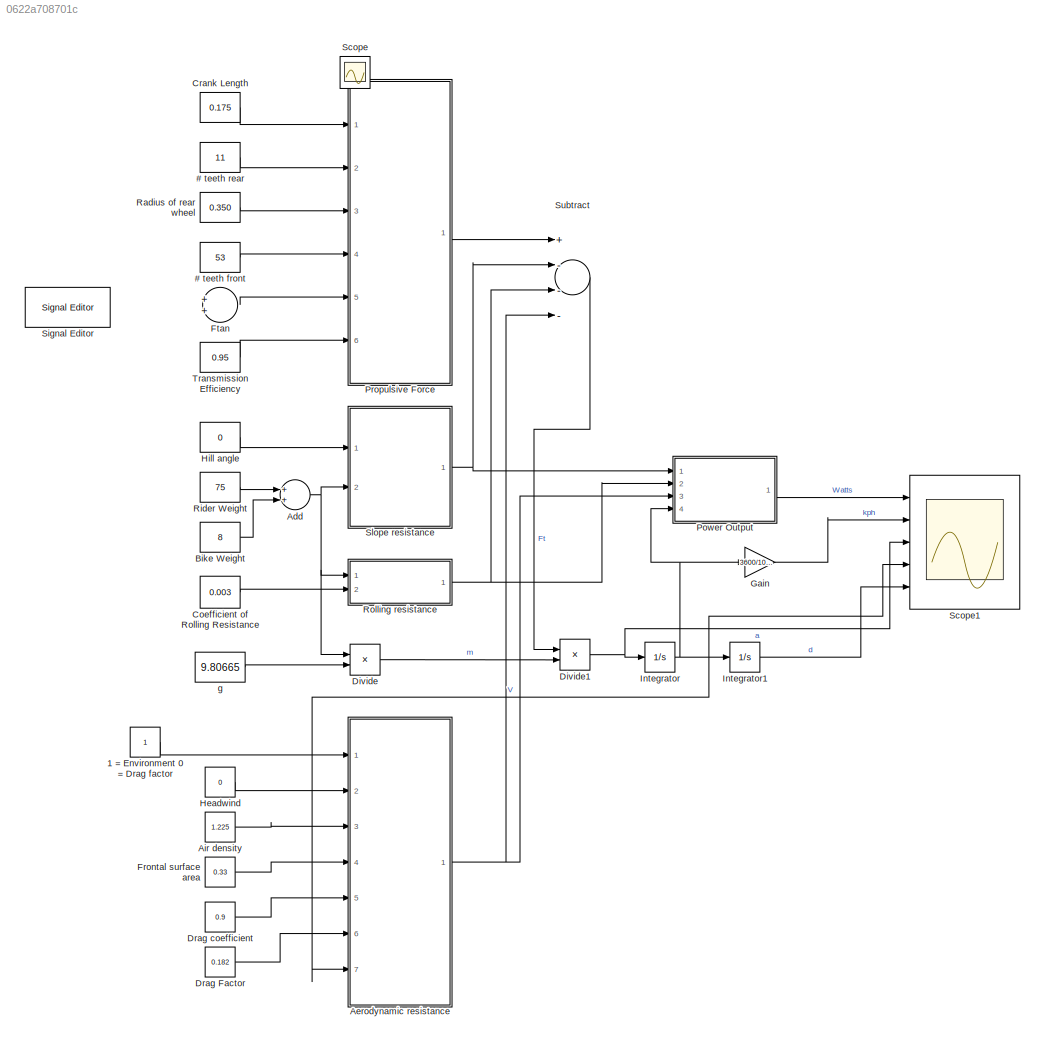
MODEL slx_0622a708701c
KIND model
CONFIG AbsTol = auto
CONFIG EnableMultiTasking = off
CONFIG FixedStep = auto
CONFIG MaxStep = auto
CONFIG MinStep = auto
CONFIG RelTol = 1e-3
CONFIG SampleTimeConstraint = Unconstrained
CONFIG Solver = VariableStepAuto
CONFIG SolverName = VariableStepAuto
CONFIG StartTime = 0.0
CONFIG StopTime = 15.84
BLOCK [Constant]  Drag coefficient
  Value = 0.9
BLOCK [Constant] # teeth front
  Value = 53
BLOCK [Constant] # teeth rear
  Value = 11
BLOCK [Constant] 1 = Environment 0 = Drag factor
BLOCK [Sum] Add
  InputSameDT = off
  OutDataTypeStr = Inherit: Inherit via internal rule
  Ports = [2, 1]
  SaturateOnIntegerOverflow = off
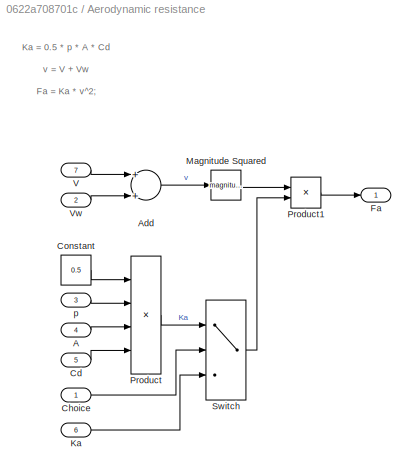
BLOCK [SubSystem] Aerodynamic resistance
  Ports = [7, 1]
  RequestExecContextInheritance = off
BLOCK [Inport] Aerodynamic resistance/A
  IconDisplay = Port number
  Port = 4
BLOCK [Sum] Aerodynamic resistance/Add
  InputSameDT = off
  OutDataTypeStr = Inherit: Inherit via internal rule
  Ports = [2, 1]
  SaturateOnIntegerOverflow = off
BLOCK [Inport] Aerodynamic resistance/Cd
  IconDisplay = Port number
  Port = 5
BLOCK [Inport] Aerodynamic resistance/Choice
  IconDisplay = Port number
BLOCK [Constant] Aerodynamic resistance/Constant
  Value = 0.5
BLOCK [Outport] Aerodynamic resistance/Fa
  IconDisplay = Port number
BLOCK [Inport] Aerodynamic resistance/Ka
  IconDisplay = Port number
  Port = 6
BLOCK [Math] Aerodynamic resistance/Magnitude Squared
  Operator = magnitude^2
  Ports = [1, 1]
  SignedPower = off
BLOCK [Product] Aerodynamic resistance/Product
  InputSameDT = off
  Inputs = 4
  OutDataTypeStr = Inherit: Inherit via internal rule
  Ports = [4, 1]
  RndMeth = Floor
  SaturateOnIntegerOverflow = off
BLOCK [Product] Aerodynamic resistance/Product1
  InputSameDT = off
  OutDataTypeStr = Inherit: Inherit via internal rule
  Ports = [2, 1]
  RndMeth = Floor
  SaturateOnIntegerOverflow = off
BLOCK [Switch] Aerodynamic resistance/Switch
  Criteria = u2 > Threshold
  InputSameDT = off
  SaturateOnIntegerOverflow = off
BLOCK [Inport] Aerodynamic resistance/V
  IconDisplay = Port number
  Port = 7
BLOCK [Inport] Aerodynamic resistance/Vw
  IconDisplay = Port number
  Port = 2
BLOCK [Inport] Aerodynamic resistance/p
  IconDisplay = Port number
  Port = 3
BLOCK [Constant] Air density
  Value = 1.225
BLOCK [Constant] Bike Weight 
  Value = 8
BLOCK [Constant] Coefficient of Rolling Resistance
  Value = 0.003
BLOCK [Constant] Crank Length
  Value = 0.175
BLOCK [Product] Divide
  InputSameDT = off
  Inputs = */
  OutDataTypeStr = Inherit: Inherit via internal rule
  Ports = [2, 1]
  RndMeth = Floor
  SaturateOnIntegerOverflow = off
BLOCK [Product] Divide1
  InputSameDT = off
  Inputs = */
  OutDataTypeStr = Inherit: Inherit via internal rule
  Ports = [2, 1]
  RndMeth = Floor
  SaturateOnIntegerOverflow = off
BLOCK [Constant] Drag Factor
  Value = 0.182
BLOCK [Constant] Frontal surface area
  Value = 0.33
BLOCK [Sum] Ftan
  InputSameDT = off
  OutDataTypeStr = Inherit: Inherit via internal rule
  Ports = [2, 1]
  SaturateOnIntegerOverflow = off
BLOCK [Gain] Gain
  Gain = 3600/1000
  OutDataTypeStr = Inherit: Inherit via internal rule
  ParamDataTypeStr = Inherit: Inherit via internal rule
  SaturateOnIntegerOverflow = off
BLOCK [Constant] Headwind
  Value = 0
BLOCK [Constant] Hill angle 
  Value = 0
BLOCK [Integrator] Integrator
  Ports = [1, 1]
BLOCK [Integrator] Integrator1
  Ports = [1, 1]
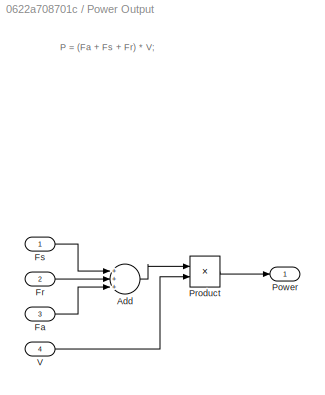
BLOCK [SubSystem] Power Output
  Ports = [4, 1]
  RequestExecContextInheritance = off
BLOCK [Sum] Power Output/Add
  InputSameDT = off
  Inputs = +++
  OutDataTypeStr = Inherit: Inherit via internal rule
  Ports = [3, 1]
  SaturateOnIntegerOverflow = off
BLOCK [Inport] Power Output/Fa
  IconDisplay = Port number
  Port = 3
BLOCK [Inport] Power Output/Fr
  IconDisplay = Port number
  Port = 2
BLOCK [Inport] Power Output/Fs
  IconDisplay = Port number
BLOCK [Outport] Power Output/Power
  IconDisplay = Port number
BLOCK [Product] Power Output/Product
  InputSameDT = off
  OutDataTypeStr = Inherit: Inherit via internal rule
  Ports = [2, 1]
  RndMeth = Floor
  SaturateOnIntegerOverflow = off
BLOCK [Inport] Power Output/V
  IconDisplay = Port number
  Port = 4
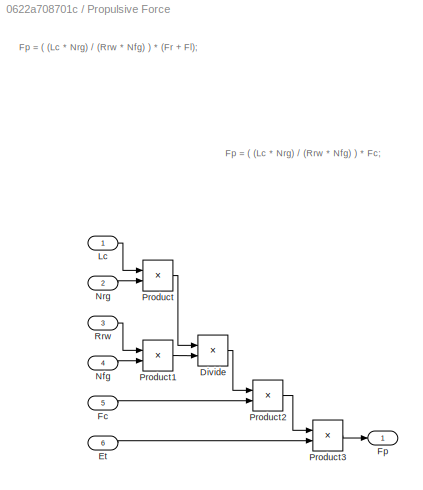
BLOCK [SubSystem] Propulsive Force
  Ports = [6, 1]
  RequestExecContextInheritance = off
BLOCK [Product] Propulsive Force/Divide
  InputSameDT = off
  Inputs = */
  OutDataTypeStr = Inherit: Inherit via internal rule
  Ports = [2, 1]
  RndMeth = Floor
  SaturateOnIntegerOverflow = off
BLOCK [Inport] Propulsive Force/Et
  IconDisplay = Port number
  Port = 6
BLOCK [Inport] Propulsive Force/Fc 
  IconDisplay = Port number
  Port = 5
BLOCK [Outport] Propulsive Force/Fp 
  IconDisplay = Port number
BLOCK [Inport] Propulsive Force/Lc 
  IconDisplay = Port number
BLOCK [Inport] Propulsive Force/Nfg 
  IconDisplay = Port number
  Port = 4
BLOCK [Inport] Propulsive Force/Nrg 
  IconDisplay = Port number
  Port = 2
BLOCK [Product] Propulsive Force/Product
  InputSameDT = off
  OutDataTypeStr = Inherit: Inherit via internal rule
  Ports = [2, 1]
  RndMeth = Floor
  SaturateOnIntegerOverflow = off
BLOCK [Product] Propulsive Force/Product1
  InputSameDT = off
  OutDataTypeStr = Inherit: Inherit via internal rule
  Ports = [2, 1]
  RndMeth = Floor
  SaturateOnIntegerOverflow = off
BLOCK [Product] Propulsive Force/Product2
  InputSameDT = off
  OutDataTypeStr = Inherit: Inherit via internal rule
  Ports = [2, 1]
  RndMeth = Floor
  SaturateOnIntegerOverflow = off
BLOCK [Product] Propulsive Force/Product3
  InputSameDT = off
  OutDataTypeStr = Inherit: Inherit via internal rule
  Ports = [2, 1]
  RndMeth = Floor
  SaturateOnIntegerOverflow = off
BLOCK [Inport] Propulsive Force/Rrw 
  IconDisplay = Port number
  Port = 3
BLOCK [Constant] Radius of rear wheel
  Value = 0.350
BLOCK [Constant] Rider Weight 
  Value = 75
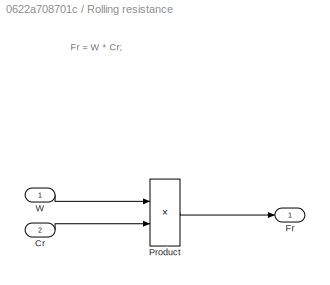
BLOCK [SubSystem] Rolling resistance
  Ports = [2, 1]
  RequestExecContextInheritance = off
BLOCK [Inport] Rolling resistance/Cr 
  IconDisplay = Port number
  Port = 2
BLOCK [Outport] Rolling resistance/Fr 
  IconDisplay = Port number
BLOCK [Product] Rolling resistance/Product
  InputSameDT = off
  OutDataTypeStr = Inherit: Inherit via internal rule
  Ports = [2, 1]
  RndMeth = Floor
  SaturateOnIntegerOverflow = off
BLOCK [Inport] Rolling resistance/W 
  IconDisplay = Port number
BLOCK [Scope] Scope
  Floating = off
  IOType = viewer
  NumInputPorts = 1
  Ports = []
  ScopeSpecificationString = Simulink.scopes.TimeScopeBlockCfg('CurrentConfiguration', extmgr.ConfigurationSet(extmgr.Configuration('Core','General UI',true),extmgr.Configuration('Core','Source UI',true),extmgr.Configuration('Sources','WiredSimulink',true),extmgr.Configuration('Visuals','Time Domain',true,'SerializedDisplays',{struct('MinYLimReal','-266.01563','MaxYLimReal','1310.78198','YLabelReal','','MinYLimMag',' 0.00000'...<+1373ch>
BLOCK [Scope] Scope1
  Floating = off
  NumInputPorts = 5
  Ports = [5]
  ScopeSpecificationString = Simulink.scopes.TimeScopeBlockCfg('CurrentConfiguration', extmgr.ConfigurationSet(extmgr.Configuration('Core','General UI',true),extmgr.Configuration('Core','Source UI',true),extmgr.Configuration('Sources','WiredSimulink',true,'DataLoggingVariableName','data_out','DataLogging',true),extmgr.Configuration('Visuals','Time Domain',true,'SerializedDisplays',{struct('MinYLimReal','-1041.28375','MaxYLimR...<+2158ch>
BLOCK [Reference] Signal Editor  REF=SignalEditorBlockLib/Signal Editor
  Ports = [0, 1]
  SourceBlock = SignalEditorBlockLib/Signal Editor
  SourceProductBaseCode = SL
  SourceProductName = Simulink
  SourceType = SignalEditor
  UserDataPersistent = on
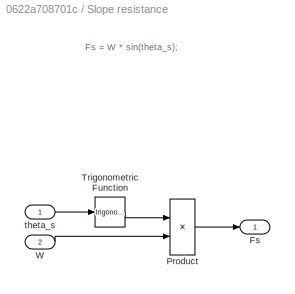
BLOCK [SubSystem] Slope resistance
  Ports = [2, 1]
  RequestExecContextInheritance = off
BLOCK [Outport] Slope resistance/Fs
  IconDisplay = Port number
BLOCK [Product] Slope resistance/Product
  InputSameDT = off
  OutDataTypeStr = Inherit: Inherit via internal rule
  Ports = [2, 1]
  RndMeth = Floor
  SaturateOnIntegerOverflow = off
BLOCK [Trigonometry] Slope resistance/Trigonometric Function
  Ports = [1, 1]
BLOCK [Inport] Slope resistance/W 
  IconDisplay = Port number
  Port = 2
BLOCK [Inport] Slope resistance/theta_s
  IconDisplay = Port number
BLOCK [Sum] Subtract
  InputSameDT = off
  Inputs = +---
  OutDataTypeStr = Inherit: Inherit via internal rule
  Ports = [4, 1]
  SaturateOnIntegerOverflow = off
BLOCK [Constant] Transmission Efficiency
  Value = 0.95
BLOCK [Constant] g
  Value = 9.80665
ANNOTATION Aerodynamic resistance: Ka = 0.5 * p * A * Cd v = V + Vw Fa = Ka * v^2;
ANNOTATION Power Output: P = (Fa + Fs + Fr) * V;
ANNOTATION Propulsive Force: Fp = ( (Lc * Nrg) / (Rrw * Nfg) ) * (Fr + Fl);
ANNOTATION Propulsive Force: Fp = ( (Lc * Nrg) / (Rrw * Nfg) ) * Fc;
ANNOTATION Rolling resistance: Fr = W * Cr;
ANNOTATION Slope resistance: Fs = W * sin(theta_s);
LINE  Drag coefficient:1 -> Aerodynamic resistance:5
LINE # teeth front:1 -> Propulsive Force:4
LINE # teeth rear:1 -> Propulsive Force:2
LINE 1 = Environment 0 = Drag factor:1 -> Aerodynamic resistance:1
NET Add:1 -> Divide:1, Rolling resistance:1, Slope resistance:2
LINE Aerodynamic resistance/A:1 -> Aerodynamic resistance/Product:3
LINE Aerodynamic resistance/Add:1 -> Aerodynamic resistance/Magnitude Squared:1
LINE Aerodynamic resistance/Cd:1 -> Aerodynamic resistance/Product:4
LINE Aerodynamic resistance/Choice:1 -> Aerodynamic resistance/Switch:2
LINE Aerodynamic resistance/Constant:1 -> Aerodynamic resistance/Product:1
LINE Aerodynamic resistance/Ka:1 -> Aerodynamic resistance/Switch:3
LINE Aerodynamic resistance/Magnitude Squared:1 -> Aerodynamic resistance/Product1:1
LINE Aerodynamic resistance/Product1:1 -> Aerodynamic resistance/Fa:1
LINE Aerodynamic resistance/Product:1 -> Aerodynamic resistance/Switch:1
LINE Aerodynamic resistance/Switch:1 -> Aerodynamic resistance/Product1:2
LINE Aerodynamic resistance/V:1 -> Aerodynamic resistance/Add:1
LINE Aerodynamic resistance/Vw:1 -> Aerodynamic resistance/Add:2
LINE Aerodynamic resistance/p:1 -> Aerodynamic resistance/Product:2
NET Aerodynamic resistance:1 -> Power Output:3, Subtract:4
LINE Air density:1 -> Aerodynamic resistance:3
LINE Bike Weight :1 -> Add:2
LINE Coefficient of Rolling Resistance:1 -> Rolling resistance:2
LINE Crank Length:1 -> Propulsive Force:1
NET Divide1:1 -> Integrator:1, Scope1:3
LINE Divide:1 -> Divide1:2
LINE Drag Factor:1 -> Aerodynamic resistance:6
LINE Frontal surface area:1 -> Aerodynamic resistance:4
LINE Ftan:1 -> Propulsive Force:5
LINE Gain:1 -> Scope1:2
LINE Headwind:1 -> Aerodynamic resistance:2
LINE Hill angle :1 -> Slope resistance:1
LINE Integrator1:1 -> Scope1:5
NET Integrator:1 -> Aerodynamic resistance:7, Gain:1, Integrator1:1, Power Output:4, Scope1:4
LINE Power Output/Add:1 -> Power Output/Product:1
LINE Power Output/Fa:1 -> Power Output/Add:3
LINE Power Output/Fr:1 -> Power Output/Add:2
LINE Power Output/Fs:1 -> Power Output/Add:1
LINE Power Output/Product:1 -> Power Output/Power:1
LINE Power Output/V:1 -> Power Output/Product:2
LINE Power Output:1 -> Scope1:1
LINE Propulsive Force/Divide:1 -> Propulsive Force/Product2:1
LINE Propulsive Force/Et:1 -> Propulsive Force/Product3:2
LINE Propulsive Force/Fc :1 -> Propulsive Force/Product2:2
LINE Propulsive Force/Lc :1 -> Propulsive Force/Product:1
LINE Propulsive Force/Nfg :1 -> Propulsive Force/Product1:2
LINE Propulsive Force/Nrg :1 -> Propulsive Force/Product:2
LINE Propulsive Force/Product1:1 -> Propulsive Force/Divide:2
LINE Propulsive Force/Product2:1 -> Propulsive Force/Product3:1
LINE Propulsive Force/Product3:1 -> Propulsive Force/Fp :1
LINE Propulsive Force/Product:1 -> Propulsive Force/Divide:1
LINE Propulsive Force/Rrw :1 -> Propulsive Force/Product1:1
LINE Propulsive Force:1 -> Subtract:1
LINE Radius of rear wheel:1 -> Propulsive Force:3
LINE Rider Weight :1 -> Add:1
LINE Rolling resistance/Cr :1 -> Rolling resistance/Product:2
LINE Rolling resistance/Product:1 -> Rolling resistance/Fr :1
LINE Rolling resistance/W :1 -> Rolling resistance/Product:1
NET Rolling resistance:1 -> Power Output:2, Subtract:3
LINE Slope resistance/Product:1 -> Slope resistance/Fs:1
LINE Slope resistance/Trigonometric Function:1 -> Slope resistance/Product:1
LINE Slope resistance/W :1 -> Slope resistance/Product:2
LINE Slope resistance/theta_s:1 -> Slope resistance/Trigonometric Function:1
NET Slope resistance:1 -> Power Output:1, Subtract:2
LINE Subtract:1 -> Divide1:1
LINE Transmission Efficiency:1 -> Propulsive Force:6
LINE g:1 -> Divide:2
note: NET lines group one-source signal fan-out (src -> all destinations, sorted); 1:1 wires keep LINE
